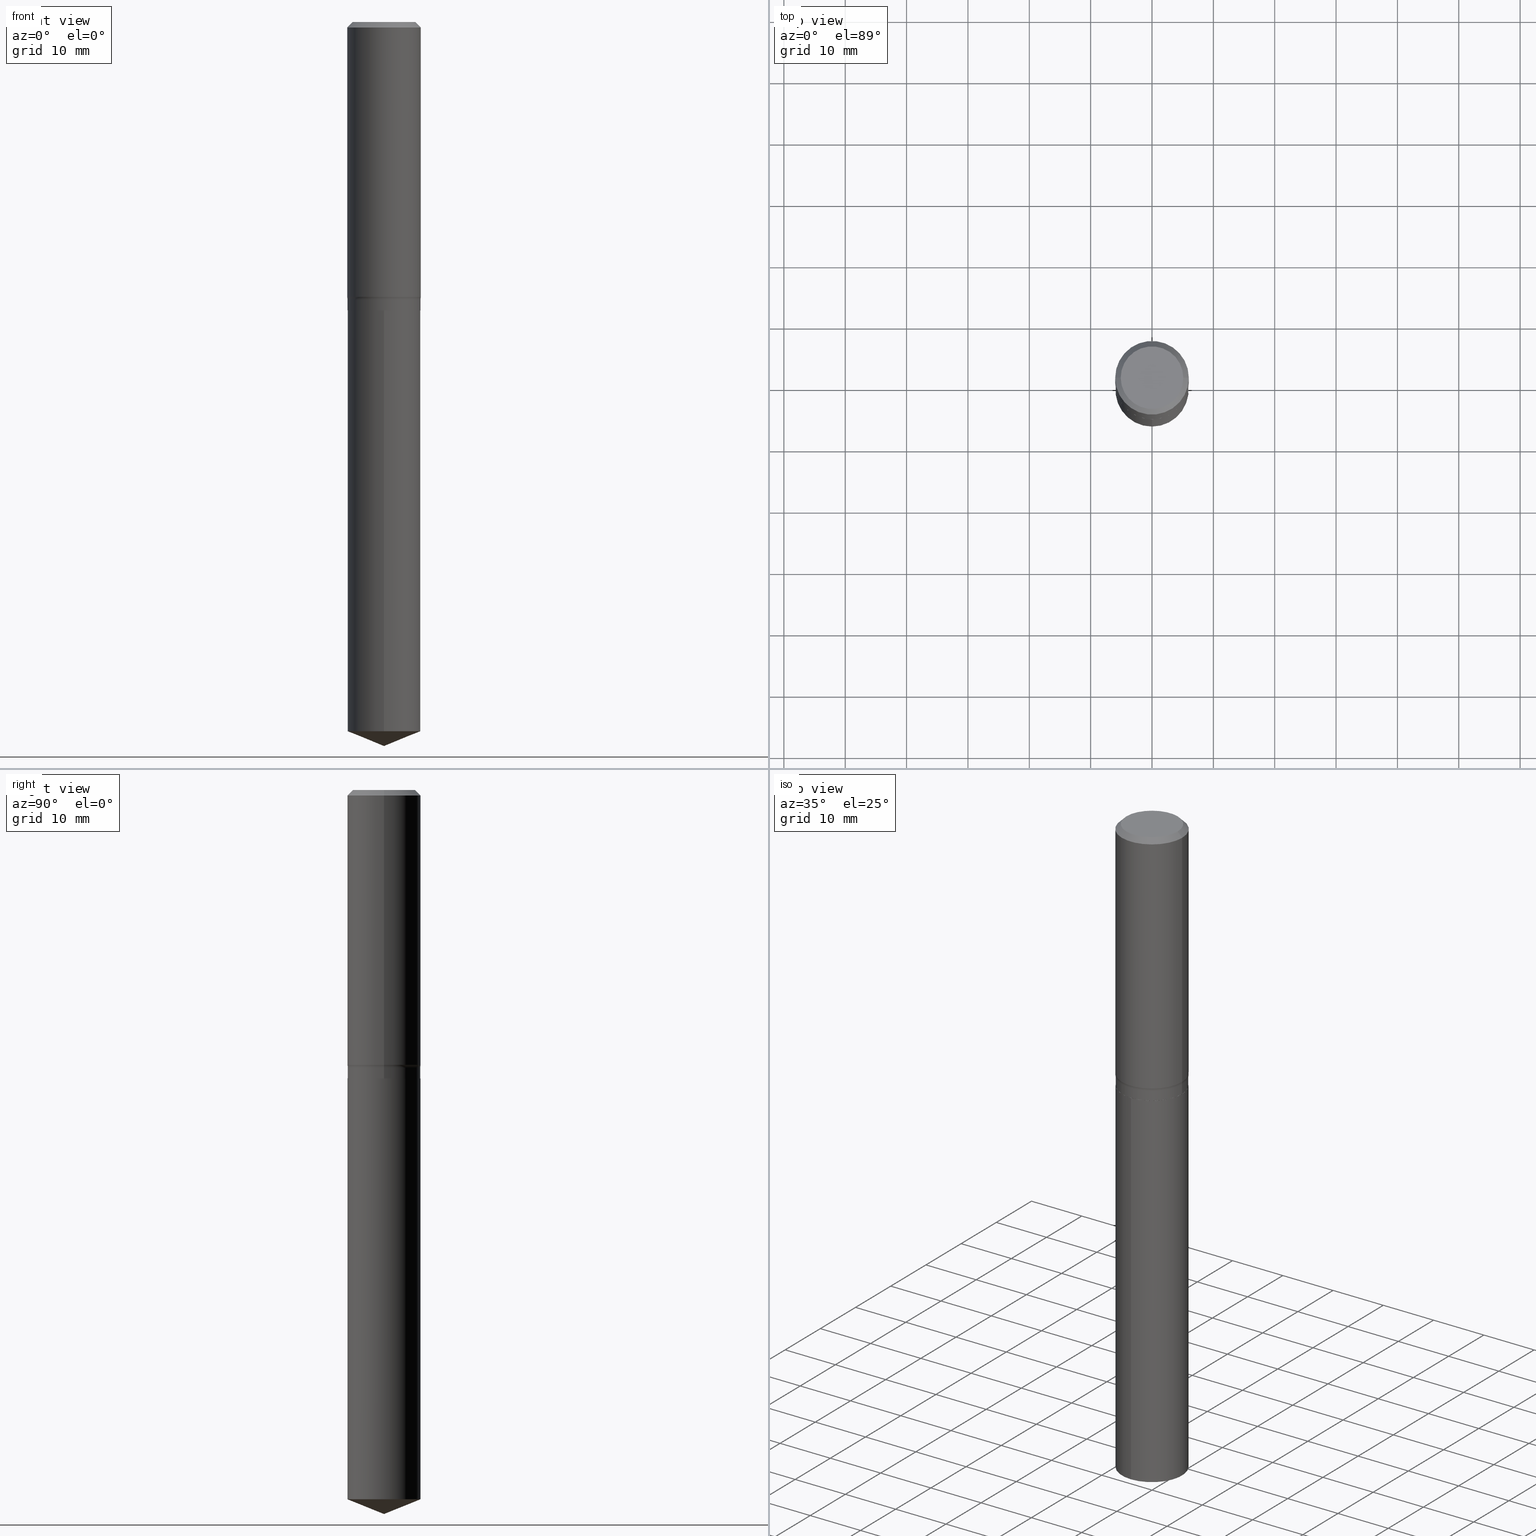
[diagram: canonical four-view strip — front | top / right | iso, engineering-drawing reading convention]
A machine part, canonical four-view strip (front | top / right | iso — engineering-drawing reading convention). The complete STEP part file that produces these views, byte-faithful:
ISO-10303-21;
HEADER;
FILE_DESCRIPTION (( 'STEP AP203' ),
    '1' );
FILE_NAME ('56862.STEP',
    '2024-04-19T14:33:19',
    ( '' ),
    ( '' ),
    'SwSTEP 2.0',
    'SolidWorks 2023',
    '' );
FILE_SCHEMA (( 'CONFIG_CONTROL_DESIGN' ));
ENDSEC;

DATA;
#1 = APPROVAL_DATE_TIME ( #459, #18 ) ;
#2 = FACE_OUTER_BOUND ( 'NONE', #207, .T. ) ;
#3 = DIMENSIONAL_EXPONENTS ( 1.000000000000000000, 0.000000000000000000, 0.000000000000000000, 0.000000000000000000, 0.000000000000000000, 0.000000000000000000, 0.000000000000000000 ) ;
#4 = DIRECTION ( 'NONE',  ( -2.438088387897960049E-29, 3.491481338843145188E-15, 1.000000000000000000 ) ) ;
#5 = FACE_OUTER_BOUND ( 'NONE', #16, .T. ) ;
#6 = PRODUCT_DEFINITION_FORMATION_WITH_SPECIFIED_SOURCE ( 'ANY', '', #263, .NOT_KNOWN. ) ;
#7 = DIRECTION ( 'NONE',  ( -2.445468806185136597E-29, 3.491481338843145583E-15, 1.000000000000000000 ) ) ;
#8 = ORIENTED_EDGE ( 'NONE', *, *, #10, .F. ) ;
#9 = LINE ( 'NONE', #203, #308 ) ;
#10 = EDGE_CURVE ( 'NONE', #198, #363, #327, .T. ) ;
#11 = ORIENTED_EDGE ( 'NONE', *, *, #35, .F. ) ;
#12 = DIRECTION ( 'NONE',  ( -2.445500418840969907E-29, 3.491436067720712344E-15, 1.000000000000000000 ) ) ;
#13 = ORIENTED_EDGE ( 'NONE', *, *, #467, .T. ) ;
#14 = DIRECTION ( 'NONE',  ( -2.445468806185136597E-29, 3.491481338843145583E-15, 1.000000000000000000 ) ) ;
#15 = VECTOR ( 'NONE', #393, 39.37007874015748143 ) ;
#16 = EDGE_LOOP ( 'NONE', ( #392, #406, #11, #434 ) ) ;
#17 = ORIENTED_EDGE ( 'NONE', *, *, #175, .T. ) ;
#18 = APPROVAL ( #184, 'UNSPECIFIED' ) ;
#19 = ORIENTED_EDGE ( 'NONE', *, *, #215, .F. ) ;
#20 = ORIENTED_EDGE ( 'NONE', *, *, #48, .T. ) ;
#21 = AXIS2_PLACEMENT_3D ( 'NONE', #265, #216, #174 ) ;
#22 = AXIS2_PLACEMENT_3D ( 'NONE', #476, #206, #468 ) ;
#23 = CARTESIAN_POINT ( 'NONE',  ( -0.2362000000000002153, -4.479762893647714438E-15, -1.763739867947701212 ) ) ;
#24 = ORIENTED_EDGE ( 'NONE', *, *, #453, .T. ) ;
#25 = CC_DESIGN_PERSON_AND_ORGANIZATION_ASSIGNMENT ( #181, #186, ( #69 ) ) ;
#26 = LINE ( 'NONE', #64, #359 ) ;
#27 = EDGE_CURVE ( 'NONE', #285, #177, #134, .T. ) ;
#28 = DIRECTION ( 'NONE',  ( -6.982962677686266711E-15, -1.000000000000000000, 3.491481338843145583E-15 ) ) ;
#29 = AXIS2_PLACEMENT_3D ( 'NONE', #344, #233, #234 ) ;
#30 = AXIS2_PLACEMENT_3D ( 'NONE', #169, #138, #440 ) ;
#31 = ADVANCED_FACE ( 'NONE', ( #411 ), #70, .F. ) ;
#32 = PERSON_AND_ORGANIZATION ( #410, #261 ) ;
#33 = CARTESIAN_POINT ( 'NONE',  ( 4.313170829291195543E-29, -6.158064835513072410E-15, -1.763739867947701212 ) ) ;
#34 = DATE_TIME_ROLE ( 'creation_date' ) ;
#35 = EDGE_CURVE ( 'NONE', #356, #363, #282, .T. ) ;
#36 = CARTESIAN_POINT ( 'NONE',  ( 1.665512172621786440E-15, 0.2343999999999841766, -4.551296252664241315 ) ) ;
#37 = EDGE_LOOP ( 'NONE', ( #333, #133, #358, #437 ) ) ;
#38 = CALENDAR_DATE ( 2024, 19, 4 ) ;
#39 = CARTESIAN_POINT ( 'NONE',  ( 0.2343999999999999972, -8.096745224777249096E-15, -1.850200000000000067 ) ) ;
#40 = AXIS2_PLACEMENT_3D ( 'NONE', #191, #416, #452 ) ;
#41 = AXIS2_PLACEMENT_3D ( 'NONE', #284, #357, #435 ) ;
#42 = PERSON_AND_ORGANIZATION_ROLE ( 'creator' ) ;
#43 = LINE ( 'NONE', #378, #328 ) ;
#44 = CARTESIAN_POINT ( 'NONE',  ( 0.000000000000000000, 0.000000000000000000, 0.000000000000000000 ) ) ;
#45 = CARTESIAN_POINT ( 'NONE',  ( 0.000000000000000000, 0.000000000000000000, 0.000000000000000000 ) ) ;
#46 = ORIENTED_EDGE ( 'NONE', *, *, #158, .T. ) ;
#47 = CIRCLE ( 'NONE', #192, 0.2343999999999999972 ) ;
#48 = EDGE_CURVE ( 'NONE', #223, #316, #26, .T. ) ;
#49 = AXIS2_PLACEMENT_3D ( 'NONE', #54, #165, #349 ) ;
#50 = FACE_OUTER_BOUND ( 'NONE', #318, .T. ) ;
#51 = ORIENTED_EDGE ( 'NONE', *, *, #220, .F. ) ;
#52 = LINE ( 'NONE', #355, #104 ) ;
#53 = ORIENTED_EDGE ( 'NONE', *, *, #266, .F. ) ;
#54 = CARTESIAN_POINT ( 'NONE',  ( 4.353912662532017137E-29, -6.216233375676336032E-15, -1.780399999999999983 ) ) ;
#55 = ORIENTED_EDGE ( 'NONE', *, *, #106, .T. ) ;
#56 = CC_DESIGN_PERSON_AND_ORGANIZATION_ASSIGNMENT ( #442, #218, ( #417 ) ) ;
#57 = CARTESIAN_POINT ( 'NONE',  ( 0.2361999999999999933, -1.773078968304709514E-15, -0.03543000000000021826 ) ) ;
#58 = VECTOR ( 'NONE', #273, 39.37007874015748143 ) ;
#59 = AXIS2_PLACEMENT_3D ( 'NONE', #45, #7, #242 ) ;
#60 = ORIENTED_EDGE ( 'NONE', *, *, #436, .F. ) ;
#61 = DIRECTION ( 'NONE',  ( -2.445500418840969907E-29, 3.491436067720711950E-15, 1.000000000000000000 ) ) ;
#62 = EDGE_LOOP ( 'NONE', ( #325, #398, #262, #213 ) ) ;
#63 = DIRECTION ( 'NONE',  ( 1.000000000000000000, -6.982962677686265922E-15, 0.000000000000000000 ) ) ;
#64 = CARTESIAN_POINT ( 'NONE',  ( 0.2362000000000001043, -1.649375784469496920E-15, 1.151752954443000508E-29 ) ) ;
#65 = ADVANCED_BREP_SHAPE_REPRESENTATION ( '56862', ( #426, #275, #156 ), #415 ) ;
#66 = EDGE_CURVE ( 'NONE', #351, #166, #68, .T. ) ;
#67 = DIRECTION ( 'NONE',  ( 1.000000000000000000, -6.982962677686265922E-15, 0.000000000000000000 ) ) ;
#68 = CIRCLE ( 'NONE', #199, 0.2338999999999999968 ) ;
#69 = SECURITY_CLASSIFICATION ( '', '', #450 ) ;
#70 = PLANE ( 'NONE',  #259 ) ;
#71 = CARTESIAN_POINT ( 'NONE',  ( 4.525829119606832626E-29, -6.461684513797009689E-15, -1.850700000000000012 ) ) ;
#72 = FACE_OUTER_BOUND ( 'NONE', #89, .T. ) ;
#73 = ADVANCED_FACE ( 'NONE', ( #72 ), #136, .T. ) ;
#74 = APPROVAL_STATUS ( 'not_yet_approved' ) ;
#75 = CARTESIAN_POINT ( 'NONE',  ( -1.636806451649615354E-15, -0.2344000000000064643, -1.850699999999999124 ) ) ;
#76 = AXIS2_PLACEMENT_3D ( 'NONE', #109, #80, #78 ) ;
#77 = COORDINATED_UNIVERSAL_TIME_OFFSET ( 5, 0, .BEHIND. ) ;
#78 = DIRECTION ( 'NONE',  ( 1.000000000000000000, -6.982962677686269866E-15, 4.883557194083114022E-29 ) ) ;
#79 = LINE ( 'NONE', #456, #454 ) ;
#80 = DIRECTION ( 'NONE',  ( -2.445468806185136597E-29, 3.491481338843145583E-15, 1.000000000000000000 ) ) ;
#81 = CC_DESIGN_APPROVAL ( #18, ( #69 ) ) ;
#82 = CARTESIAN_POINT ( 'NONE',  ( -1.001697619218023151E-46, 1.430158722866391908E-32, 4.096137381448114529E-18 ) ) ;
#83 = CARTESIAN_POINT ( 'NONE',  ( -0.2338999999999999968, -4.799725054854136166E-15, -1.850700000000000234 ) ) ;
#84 = EDGE_LOOP ( 'NONE', ( #466, #159, #469, #221 ) ) ;
#85 = FACE_OUTER_BOUND ( 'NONE', #427, .T. ) ;
#86 = ORIENTED_EDGE ( 'NONE', *, *, #376, .T. ) ;
#87 = CIRCLE ( 'NONE', #119, 0.2343999999999999972 ) ;
#88 = PLANE ( 'NONE',  #208 ) ;
#89 = EDGE_LOOP ( 'NONE', ( #60, #13, #287, #248 ) ) ;
#90 = CARTESIAN_POINT ( 'NONE',  ( 0.000000000000000000, 0.000000000000000000, 0.000000000000000000 ) ) ;
#91 = ORIENTED_EDGE ( 'NONE', *, *, #158, .F. ) ;
#92 = CARTESIAN_POINT ( 'NONE',  ( -0.2343999999999999972, -4.672573901780288082E-15, -1.780399999999999983 ) ) ;
#93 = CC_DESIGN_PERSON_AND_ORGANIZATION_ASSIGNMENT ( #32, #42, ( #6 ) ) ;
#94 = ORIENTED_EDGE ( 'NONE', *, *, #470, .T. ) ;
#95 = VECTOR ( 'NONE', #12, 39.37007874015748143 ) ;
#96 = ORIENTED_EDGE ( 'NONE', *, *, #102, .T. ) ;
#97 = EDGE_CURVE ( 'NONE', #481, #142, #484, .T. ) ;
#98 = ORIENTED_EDGE ( 'NONE', *, *, #35, .T. ) ;
#99 = EDGE_CURVE ( 'NONE', #223, #356, #268, .T. ) ;
#100 = DIRECTION ( 'NONE',  ( -6.982962677686265133E-15, -1.000000000000000000, 3.498761904101795214E-15 ) ) ;
#101 = CARTESIAN_POINT ( 'NONE',  ( 4.353912662532017137E-29, -6.216233375676336032E-15, -1.780399999999999983 ) ) ;
#102 = EDGE_CURVE ( 'NONE', #103, #202, #47, .T. ) ;
#103 = VERTEX_POINT ( 'NONE', #288 ) ;
#104 = VECTOR ( 'NONE', #362, 39.37007874015748143 ) ;
#105 = CARTESIAN_POINT ( 'NONE',  ( 0.000000000000000000, 0.000000000000000000, 0.000000000000000000 ) ) ;
#106 = EDGE_CURVE ( 'NONE', #142, #316, #126, .T. ) ;
#107 = VERTEX_POINT ( 'NONE', #151 ) ;
#108 = COORDINATED_UNIVERSAL_TIME_OFFSET ( 5, 0, .BEHIND. ) ;
#109 = CARTESIAN_POINT ( 'NONE',  ( 4.353912662532017137E-29, -6.216233375676336032E-15, -1.780399999999999983 ) ) ;
#110 = AXIS2_PLACEMENT_3D ( 'NONE', #82, #341, #227 ) ;
#111 = CC_DESIGN_APPROVAL ( #112, ( #417 ) ) ;
#112 = APPROVAL ( #480, 'UNSPECIFIED' ) ;
#113 = DIRECTION ( 'NONE',  ( 6.588037525764800757E-15, 0.9271838545667901998, 0.3746065934159050204 ) ) ;
#114 = CARTESIAN_POINT ( 'NONE',  ( -0.2361999999999999933, -1.462582067808785220E-15, -0.03543000000000021826 ) ) ;
#115 = DATE_AND_TIME ( #38, #235 ) ;
#116 = EDGE_CURVE ( 'NONE', #107, #285, #43, .T. ) ;
#117 = CARTESIAN_POINT ( 'NONE',  ( 0.2007700000000000040, -1.560767496960719672E-15, 4.096137381458473721E-18 ) ) ;
#118 = CONICAL_SURFACE ( 'NONE', #183, 0.2361999999999999933, 0.7853981633974452814 ) ;
#119 = AXIS2_PLACEMENT_3D ( 'NONE', #465, #430, #352 ) ;
#120 = CARTESIAN_POINT ( 'NONE',  ( 0.2343999999999999972, -1.636806451649660911E-15, 1.142975836246567295E-29 ) ) ;
#121 = CARTESIAN_POINT ( 'NONE',  ( 0.2343999999999999972, -7.853039827325996154E-15, -1.780399999999999983 ) ) ;
#122 = ORIENTED_EDGE ( 'NONE', *, *, #106, .F. ) ;
#123 = LINE ( 'NONE', #83, #270 ) ;
#124 = ORIENTED_EDGE ( 'NONE', *, *, #301, .T. ) ;
#125 = CC_DESIGN_PERSON_AND_ORGANIZATION_ASSIGNMENT ( #254, #179, ( #263 ) ) ;
#126 = CIRCLE ( 'NONE', #314, 0.2361999999999999933 ) ;
#127 = APPROVAL_PERSON_ORGANIZATION ( #421, #224, #306 ) ;
#128 = DIRECTION ( 'NONE',  ( -1.000000000000000000, 6.982962677686265922E-15, -4.876176775795935793E-29 ) ) ;
#129 = VERTEX_POINT ( 'NONE', #39 ) ;
#130 = DIRECTION ( 'NONE',  ( 1.000000000000000000, -6.982962677686265922E-15, 0.000000000000000000 ) ) ;
#131 = ORIENTED_EDGE ( 'NONE', *, *, #312, .T. ) ;
#132 = LENGTH_MEASURE_WITH_UNIT ( LENGTH_MEASURE( 0.02539999999999999897 ), #222 );
#133 = ORIENTED_EDGE ( 'NONE', *, *, #334, .T. ) ;
#134 = CIRCLE ( 'NONE', #337, 0.2343999999999999972 ) ;
#135 = COORDINATED_UNIVERSAL_TIME_OFFSET ( 5, 0, .BEHIND. ) ;
#136 = CYLINDRICAL_SURFACE ( 'NONE', #21, 0.2343999999999999972 ) ;
#137 = CARTESIAN_POINT ( 'NONE',  ( 0.3124000000000000110, -8.397710916185525778E-15, -1.780399999999999983 ) ) ;
#138 = DIRECTION ( 'NONE',  ( -2.445468806185136597E-29, 3.491481338843145583E-15, 1.000000000000000000 ) ) ;
#139 = DIRECTION ( 'NONE',  ( -2.445468806185136877E-29, 3.491481338843145188E-15, 1.000000000000000000 ) ) ;
#140 = EDGE_CURVE ( 'NONE', #431, #142, #304, .T. ) ;
#141 = APPLICATION_PROTOCOL_DEFINITION ( 'international standard', 'config_control_design', 1994, #354 ) ;
#142 = VERTEX_POINT ( 'NONE', #114 ) ;
#143 = VECTOR ( 'NONE', #371, 39.37007874015748143 ) ;
#144 = CC_DESIGN_SECURITY_CLASSIFICATION ( #69, ( #6 ) ) ;
#145 = CARTESIAN_POINT ( 'NONE',  ( 0.2338999999999999968, -8.094999484107828382E-15, -1.850700000000000234 ) ) ;
#146 = DIRECTION ( 'NONE',  ( 1.000000000000000000, -6.982962677686266711E-15, 0.000000000000000000 ) ) ;
#147 = PERSON_AND_ORGANIZATION ( #410, #261 ) ;
#148 = DIRECTION ( 'NONE',  ( -0.7071067811865453523, 2.468850131082234184E-15, -0.7071067811865496822 ) ) ;
#149 = CONICAL_SURFACE ( 'NONE', #164, 0.2338999999999999968, 0.7853981633972775267 ) ;
#150 = AXIS2_PLACEMENT_3D ( 'NONE', #264, #401, #63 ) ;
#151 = CARTESIAN_POINT ( 'NONE',  ( 1.136179494593514564E-28, -1.622121197063042648E-14, -4.645999999999999908 ) ) ;
#152 = ADVANCED_FACE ( 'NONE', ( #230 ), #348, .F. ) ;
#153 = APPROVAL_DATE_TIME ( #225, #224 ) ;
#154 = DIRECTION ( 'NONE',  ( 2.445468806185136597E-29, -3.491481338843145583E-15, -1.000000000000000000 ) ) ;
#155 = DIRECTION ( 'NONE',  ( -2.445468806185136597E-29, 3.491481338843145583E-15, 1.000000000000000000 ) ) ;
#156 = AXIS2_PLACEMENT_3D ( 'NONE', #105, #438, #448 ) ;
#157 = CARTESIAN_POINT ( 'NONE',  ( -0.2007700000000000040, 1.463821008716677338E-15, 4.096137381438094301E-18 ) ) ;
#158 = EDGE_CURVE ( 'NONE', #481, #223, #399, .T. ) ;
#159 = ORIENTED_EDGE ( 'NONE', *, *, #97, .T. ) ;
#160 = LINE ( 'NONE', #201, #95 ) ;
#161 = ORIENTED_EDGE ( 'NONE', *, *, #334, .F. ) ;
#162 = DIRECTION ( 'NONE',  ( 1.000000000000000000, -6.982962677686266711E-15, 4.876176775795935793E-29 ) ) ;
#163 = ORIENTED_EDGE ( 'NONE', *, *, #116, .T. ) ;
#164 = AXIS2_PLACEMENT_3D ( 'NONE', #302, #451, #490 ) ;
#165 = DIRECTION ( 'NONE',  ( -2.445468806185136597E-29, 3.491481338843145583E-15, 1.000000000000000000 ) ) ;
#166 = VERTEX_POINT ( 'NONE', #145 ) ;
#167 = DIRECTION ( 'NONE',  ( -2.445500418840969907E-29, 3.491436067720711950E-15, 1.000000000000000000 ) ) ;
#168 = ORIENTED_EDGE ( 'NONE', *, *, #436, .T. ) ;
#169 = CARTESIAN_POINT ( 'NONE',  ( 0.000000000000000000, 0.000000000000000000, 0.000000000000000000 ) ) ;
#170 = CARTESIAN_POINT ( 'NONE',  ( 1.113013838661758567E-28, -1.589064367470033454E-14, -4.551296252664240427 ) ) ;
#171 = CIRCLE ( 'NONE', #446, 0.2362000000000002153 ) ;
#172 = APPLICATION_PROTOCOL_DEFINITION ( 'international standard', 'config_control_design', 1994, #231 ) ;
#173 = AXIS2_PLACEMENT_3D ( 'NONE', #332, #412, #478 ) ;
#174 = DIRECTION ( 'NONE',  ( -6.982962677686265922E-15, -1.000000000000000000, 3.496392483358698711E-15 ) ) ;
#175 = EDGE_CURVE ( 'NONE', #431, #253, #400, .T. ) ;
#176 = CARTESIAN_POINT ( 'NONE',  ( 1.113013838661758567E-28, -1.589064367470033454E-14, -4.551296252664240427 ) ) ;
#177 = VERTEX_POINT ( 'NONE', #36 ) ;
#178 = ADVANCED_FACE ( 'NONE', ( #374 ), #321, .F. ) ;
#179 = PERSON_AND_ORGANIZATION_ROLE ( 'design_owner' ) ;
#180 = ORIENTED_EDGE ( 'NONE', *, *, #211, .F. ) ;
#181 = PERSON_AND_ORGANIZATION ( #410, #261 ) ;
#182 = CARTESIAN_POINT ( 'NONE',  ( 4.525829119606832626E-29, -6.461684513797009689E-15, -1.850700000000000012 ) ) ;
#183 = AXIS2_PLACEMENT_3D ( 'NONE', #310, #383, #194 ) ;
#184 = APPROVAL_STATUS ( 'not_yet_approved' ) ;
#185 = DIRECTION ( 'NONE',  ( -6.474490251793187306E-15, -0.9271838545667875353, 0.3746065934159114597 ) ) ;
#186 = PERSON_AND_ORGANIZATION_ROLE ( 'classification_officer' ) ;
#187 = EDGE_CURVE ( 'NONE', #316, #142, #390, .T. ) ;
#188 = DIRECTION ( 'NONE',  ( -2.445468806185136597E-29, 3.491481338843145583E-15, 1.000000000000000000 ) ) ;
#189 = PRODUCT_DEFINITION_SHAPE ( 'NONE', 'NONE',  #417 ) ;
#190 = PERSON_AND_ORGANIZATION_ROLE ( 'design_supplier' ) ;
#191 = CARTESIAN_POINT ( 'NONE',  ( 4.313170829291195543E-29, -6.158064835513072410E-15, -1.763739867947701212 ) ) ;
#192 = AXIS2_PLACEMENT_3D ( 'NONE', #182, #339, #488 ) ;
#193 = LOCAL_TIME ( 10, 33, 19.00000000000000000, #77 ) ;
#194 = DIRECTION ( 'NONE',  ( -1.000000000000000000, 6.982962677686266711E-15, 0.000000000000000000 ) ) ;
#195 = ADVANCED_FACE ( 'NONE', ( #491 ), #149, .T. ) ;
#196 = DIRECTION ( 'NONE',  ( 1.000000000000000000, -6.982962677686266711E-15, 0.000000000000000000 ) ) ;
#197 = CARTESIAN_POINT ( 'NONE',  ( 4.525829119606832626E-29, -6.461684513797009689E-15, -1.850700000000000012 ) ) ;
#198 = VERTEX_POINT ( 'NONE', #267 ) ;
#199 = AXIS2_PLACEMENT_3D ( 'NONE', #300, #449, #404 ) ;
#200 = AXIS2_PLACEMENT_3D ( 'NONE', #90, #286, #162 ) ;
#201 = CARTESIAN_POINT ( 'NONE',  ( -1.636806451649615354E-15, -0.2344000000000064643, -1.850699999999999124 ) ) ;
#202 = VERTEX_POINT ( 'NONE', #75 ) ;
#203 = CARTESIAN_POINT ( 'NONE',  ( 0.2361999999999999933, -1.744152810908849053E-15, -0.03543000000000021826 ) ) ;
#204 = CC_DESIGN_PERSON_AND_ORGANIZATION_ASSIGNMENT ( #303, #190, ( #6 ) ) ;
#205 = EDGE_LOOP ( 'NONE', ( #361, #46, #20, #122 ) ) ;
#206 = DIRECTION ( 'NONE',  ( -2.445500418840969907E-29, 3.491436067720711950E-15, 1.000000000000000000 ) ) ;
#207 = EDGE_LOOP ( 'NONE', ( #161, #479, #295, #55 ) ) ;
#208 = AXIS2_PLACEMENT_3D ( 'NONE', #247, #471, #128 ) ;
#209 = DIRECTION ( 'NONE',  ( -2.445500418840969907E-29, 3.491436067720711950E-15, 1.000000000000000000 ) ) ;
#210 = EDGE_LOOP ( 'NONE', ( #477, #180, #429, #98 ) ) ;
#211 = EDGE_CURVE ( 'NONE', #223, #481, #171, .T. ) ;
#212 = CARTESIAN_POINT ( 'NONE',  ( -8.491780760846409121E-28, 1.212368171484935185E-13, 34.72407874015748064 ) ) ;
#213 = ORIENTED_EDGE ( 'NONE', *, *, #376, .F. ) ;
#214 =( NAMED_UNIT ( * ) PLANE_ANGLE_UNIT ( ) SI_UNIT ( $, .RADIAN. ) );
#215 = EDGE_CURVE ( 'NONE', #166, #129, #307, .T. ) ;
#216 = DIRECTION ( 'NONE',  ( -2.445500418840969907E-29, 3.491436067720711950E-15, 1.000000000000000000 ) ) ;
#217 = CLOSED_SHELL ( 'NONE', ( #195, #245, #256, #178, #419, #279, #305, #475, #232, #384, #152, #298 ) ) ;
#218 = PERSON_AND_ORGANIZATION_ROLE ( 'creator' ) ;
#219 = CONICAL_SURFACE ( 'NONE', #408, 97.44436430772933022, 1.186823891356148186 ) ;
#220 = EDGE_CURVE ( 'NONE', #107, #177, #79, .T. ) ;
#221 = ORIENTED_EDGE ( 'NONE', *, *, #48, .F. ) ;
#222 =( LENGTH_UNIT ( ) NAMED_UNIT ( * ) SI_UNIT ( $, .METRE. ) );
#223 = VERTEX_POINT ( 'NONE', #418 ) ;
#224 = APPROVAL ( #74, 'UNSPECIFIED' ) ;
#225 = DATE_AND_TIME ( #489, #391 ) ;
#226 = CARTESIAN_POINT ( 'NONE',  ( -0.2362000000000001043, 1.678301941865357380E-15, -1.161852468318209317E-29 ) ) ;
#227 = DIRECTION ( 'NONE',  ( 1.000000000000000000, -6.982962677686266711E-15, 4.876140833081945105E-29 ) ) ;
#228 = AXIS2_PLACEMENT_3D ( 'NONE', #71, #61, #405 ) ;
#229 = EDGE_CURVE ( 'NONE', #253, #431, #407, .T. ) ;
#230 = FACE_OUTER_BOUND ( 'NONE', #246, .T. ) ;
#231 = APPLICATION_CONTEXT ( 'configuration controlled 3d designs of mechanical parts and assemblies' ) ;
#232 = ADVANCED_FACE ( 'NONE', ( #2 ), #118, .T. ) ;
#233 = DIRECTION ( 'NONE',  ( -2.445468806185136597E-29, 3.491481338843145583E-15, 1.000000000000000000 ) ) ;
#234 = DIRECTION ( 'NONE',  ( 1.000000000000000000, -6.982962677686266711E-15, 4.876140833081945105E-29 ) ) ;
#235 = LOCAL_TIME ( 10, 33, 19.00000000000000000, #108 ) ;
#236 = CARTESIAN_POINT ( 'NONE',  ( 8.664295980313991736E-31, -1.237031838352134079E-16, -0.03543000000000021826 ) ) ;
#237 = LINE ( 'NONE', #120, #15 ) ;
#238 = EDGE_LOOP ( 'NONE', ( #51, #163, #396 ) ) ;
#239 = CARTESIAN_POINT ( 'NONE',  ( -1.636806451649549484E-15, -0.2344000000000159567, -4.551296252664239539 ) ) ;
#240 = EDGE_LOOP ( 'NONE', ( #281, #124, #402, #19 ) ) ;
#241 = VECTOR ( 'NONE', #139, 39.37007874015748143 ) ;
#242 = DIRECTION ( 'NONE',  ( 1.000000000000000000, -6.982962677686266711E-15, 4.876176775795935793E-29 ) ) ;
#243 = EDGE_LOOP ( 'NONE', ( #474, #439, #394 ) ) ;
#244 = FACE_OUTER_BOUND ( 'NONE', #486, .T. ) ;
#245 = ADVANCED_FACE ( 'NONE', ( #347 ), #462, .T. ) ;
#246 = EDGE_LOOP ( 'NONE', ( #445, #323 ) ) ;
#247 = CARTESIAN_POINT ( 'NONE',  ( -5.008488096090115757E-47, 7.150793614331959538E-33, 2.048068690724057264E-18 ) ) ;
#248 = ORIENTED_EDGE ( 'NONE', *, *, #102, .F. ) ;
#249 = AXIS2_PLACEMENT_3D ( 'NONE', #458, #154, #461 ) ;
#250 = AXIS2_PLACEMENT_3D ( 'NONE', #176, #167, #485 ) ;
#251 = CIRCLE ( 'NONE', #41, 0.2338999999999999968 ) ;
#252 = APPROVAL_ROLE ( '' ) ;
#253 = VERTEX_POINT ( 'NONE', #117 ) ;
#254 = PERSON_AND_ORGANIZATION ( #410, #261 ) ;
#255 = ORIENTED_EDGE ( 'NONE', *, *, #229, .T. ) ;
#256 = ADVANCED_FACE ( 'NONE', ( #274 ), #385, .T. ) ;
#257 = FACE_OUTER_BOUND ( 'NONE', #205, .T. ) ;
#258 = DIRECTION ( 'NONE',  ( 1.000000000000000000, -6.982962677686255667E-15, 0.000000000000000000 ) ) ;
#259 = AXIS2_PLACEMENT_3D ( 'NONE', #365, #370, #413 ) ;
#260 = COORDINATED_UNIVERSAL_TIME_OFFSET ( 5, 0, .BEHIND. ) ;
#261 = ORGANIZATION ( 'UNSPECIFIED', 'UNSPECIFIED', '' ) ;
#262 = ORIENTED_EDGE ( 'NONE', *, *, #215, .T. ) ;
#263 = PRODUCT ( '56862', '56862', '', ( #324 ) ) ;
#264 = CARTESIAN_POINT ( 'NONE',  ( 4.353912662532017137E-29, -6.216233375676336032E-15, -1.780399999999999983 ) ) ;
#265 = CARTESIAN_POINT ( 'NONE',  ( 4.525829119606832626E-29, -6.461684513797009689E-15, -1.850700000000000012 ) ) ;
#266 = EDGE_CURVE ( 'NONE', #285, #202, #160, .T. ) ;
#267 = CARTESIAN_POINT ( 'NONE',  ( -0.2343999999999999972, -4.672573901780288082E-15, -1.850200000000000067 ) ) ;
#268 = CIRCLE ( 'NONE', #422, 0.07800000000000002764 ) ;
#269 = CARTESIAN_POINT ( 'NONE',  ( 8.664295980313991736E-31, -1.237031838352134079E-16, -0.03543000000000021826 ) ) ;
#270 = VECTOR ( 'NONE', #395, 39.37007874015748143 ) ;
#271 = CARTESIAN_POINT ( 'NONE',  ( 0.2338999999999999968, -8.094999484107828382E-15, -1.850700000000000234 ) ) ;
#272 = ADVANCED_FACE ( 'NONE', ( #276 ), #290, .T. ) ;
#273 = DIRECTION ( 'NONE',  ( 0.7071067811864267805, -2.468850131080992517E-15, 0.7071067811866682540 ) ) ;
#274 = FACE_OUTER_BOUND ( 'NONE', #84, .T. ) ;
#275 = MANIFOLD_SOLID_BREP ( 'Body-Move/Copy2[2]', #217 ) ;
#276 = FACE_OUTER_BOUND ( 'NONE', #243, .T. ) ;
#277 = CYLINDRICAL_SURFACE ( 'NONE', #200, 0.2343999999999999972 ) ;
#278 = ORIENTED_EDGE ( 'NONE', *, *, #492, .F. ) ;
#279 = ADVANCED_FACE ( 'NONE', ( #85 ), #277, .T. ) ;
#280 = DIRECTION ( 'NONE',  ( -2.445468806185136597E-29, 3.491481338843145583E-15, 1.000000000000000000 ) ) ;
#281 = ORIENTED_EDGE ( 'NONE', *, *, #293, .T. ) ;
#282 = CIRCLE ( 'NONE', #297, 0.2343999999999999972 ) ;
#283 = APPROVAL_PERSON_ORGANIZATION ( #326, #112, #252 ) ;
#284 = CARTESIAN_POINT ( 'NONE',  ( 4.525829119606833187E-29, -6.461684513797010478E-15, -1.850700000000000234 ) ) ;
#285 = VERTEX_POINT ( 'NONE', #239 ) ;
#286 = DIRECTION ( 'NONE',  ( -2.445468806185136597E-29, 3.491481338843145583E-15, 1.000000000000000000 ) ) ;
#287 = ORIENTED_EDGE ( 'NONE', *, *, #266, .T. ) ;
#288 = CARTESIAN_POINT ( 'NONE',  ( 1.665512172621786637E-15, 0.2343999999999935857, -1.850700000000000900 ) ) ;
#289 = VECTOR ( 'NONE', #148, 39.37007874015748143 ) ;
#290 = CONICAL_SURFACE ( 'NONE', #22, 97.44436430772933022, 1.186823891356148186 ) ;
#291 = DATE_AND_TIME ( #330, #299 ) ;
#292 = EDGE_LOOP ( 'NONE', ( #296, #96 ) ) ;
#293 = EDGE_CURVE ( 'NONE', #166, #351, #251, .T. ) ;
#294 = APPROVAL_DATE_TIME ( #291, #112 ) ;
#295 = ORIENTED_EDGE ( 'NONE', *, *, #140, .T. ) ;
#296 = ORIENTED_EDGE ( 'NONE', *, *, #492, .T. ) ;
#297 = AXIS2_PLACEMENT_3D ( 'NONE', #101, #443, #67 ) ;
#298 = ADVANCED_FACE ( 'NONE', ( #313 ), #424, .T. ) ;
#299 = LOCAL_TIME ( 10, 33, 19.00000000000000000, #135 ) ;
#300 = CARTESIAN_POINT ( 'NONE',  ( 4.525829119606833187E-29, -6.461684513797010478E-15, -1.850700000000000234 ) ) ;
#301 = EDGE_CURVE ( 'NONE', #351, #198, #123, .T. ) ;
#302 = CARTESIAN_POINT ( 'NONE',  ( 4.525829119606833187E-29, -6.461684513797010478E-15, -1.850700000000000234 ) ) ;
#303 = PERSON_AND_ORGANIZATION ( #410, #261 ) ;
#304 = LINE ( 'NONE', #311, #289 ) ;
#305 = ADVANCED_FACE ( 'NONE', ( #315 ), #447, .F. ) ;
#306 = APPROVAL_ROLE ( '' ) ;
#307 = LINE ( 'NONE', #271, #58 ) ;
#308 = VECTOR ( 'NONE', #319, 39.37007874015748143 ) ;
#309 = DATE_TIME_ROLE ( 'classification_date' ) ;
#310 = CARTESIAN_POINT ( 'NONE',  ( 8.664295980313991736E-31, -1.237031838352134079E-16, -0.03543000000000021826 ) ) ;
#311 = CARTESIAN_POINT ( 'NONE',  ( -0.2361999999999999933, 1.525672600634282748E-15, -0.03543000000000021826 ) ) ;
#312 = EDGE_CURVE ( 'NONE', #129, #356, #237, .T. ) ;
#313 = FACE_OUTER_BOUND ( 'NONE', #62, .T. ) ;
#314 = AXIS2_PLACEMENT_3D ( 'NONE', #269, #380, #146 ) ;
#315 = FACE_OUTER_BOUND ( 'NONE', #210, .T. ) ;
#316 = VERTEX_POINT ( 'NONE', #57 ) ;
#317 = DIRECTION ( 'NONE',  ( 1.000000000000000000, -6.982962677686266711E-15, 4.876176775795935793E-29 ) ) ;
#318 = EDGE_LOOP ( 'NONE', ( #369, #168, #278, #53 ) ) ;
#319 = DIRECTION ( 'NONE',  ( 0.7071067811865453523, -7.319954787623248157E-15, -0.7071067811865496822 ) ) ;
#320 = EDGE_LOOP ( 'NONE', ( #91, #94, #24, #387 ) ) ;
#321 = TOROIDAL_SURFACE ( 'NONE', #76, 0.3124000000000000110, 0.07799999999999999989 ) ;
#322 = CARTESIAN_POINT ( 'NONE',  ( 4.524606385203739825E-29, -6.459938773127588186E-15, -1.850200000000000067 ) ) ;
#323 = ORIENTED_EDGE ( 'NONE', *, *, #66, .F. ) ;
#324 = MECHANICAL_CONTEXT ( 'NONE', #354, 'mechanical' ) ;
#325 = ORIENTED_EDGE ( 'NONE', *, *, #301, .F. ) ;
#326 = PERSON_AND_ORGANIZATION ( #410, #261 ) ;
#327 = LINE ( 'NONE', #487, #241 ) ;
#328 = VECTOR ( 'NONE', #185, 39.37007874015748854 ) ;
#329 = CIRCLE ( 'NONE', #173, 0.07800000000000002764 ) ;
#330 = CALENDAR_DATE ( 2024, 19, 4 ) ;
#331 = DIRECTION ( 'NONE',  ( -6.982962677686265922E-15, -1.000000000000000000, 2.330928322239132474E-15 ) ) ;
#332 = CARTESIAN_POINT ( 'NONE',  ( -0.3124000000000000110, -3.996497869161782973E-15, -1.780399999999999983 ) ) ;
#333 = ORIENTED_EDGE ( 'NONE', *, *, #229, .F. ) ;
#334 = EDGE_CURVE ( 'NONE', #253, #316, #9, .T. ) ;
#335 = DIRECTION ( 'NONE',  ( -2.445468806185136877E-29, 3.491481338843145188E-15, 1.000000000000000000 ) ) ;
#336 = EDGE_CURVE ( 'NONE', #129, #198, #338, .T. ) ;
#337 = AXIS2_PLACEMENT_3D ( 'NONE', #170, #441, #331 ) ;
#338 = CIRCLE ( 'NONE', #350, 0.2343999999999999972 ) ;
#339 = DIRECTION ( 'NONE',  ( -2.445500418840969907E-29, 3.491436067720711950E-15, 1.000000000000000000 ) ) ;
#340 = SHAPE_DEFINITION_REPRESENTATION ( #189, #65 ) ;
#341 = DIRECTION ( 'NONE',  ( -2.445468806185136597E-29, 3.491481338843145583E-15, 1.000000000000000000 ) ) ;
#342 = DIRECTION ( 'NONE',  ( 1.000000000000000000, -6.982962677686266711E-15, 0.000000000000000000 ) ) ;
#343 = COORDINATED_UNIVERSAL_TIME_OFFSET ( 5, 0, .BEHIND. ) ;
#344 = CARTESIAN_POINT ( 'NONE',  ( -1.001697619218023151E-46, 1.430158722866391908E-32, 4.096137381448114529E-18 ) ) ;
#345 = APPROVAL_PERSON_ORGANIZATION ( #147, #18, #381 ) ;
#346 = CC_DESIGN_DATE_AND_TIME_ASSIGNMENT ( #115, #309, ( #69 ) ) ;
#347 = FACE_OUTER_BOUND ( 'NONE', #37, .T. ) ;
#348 = PLANE ( 'NONE',  #472 ) ;
#349 = DIRECTION ( 'NONE',  ( 1.000000000000000000, -6.982962677686269866E-15, 4.883557194083114022E-29 ) ) ;
#350 = AXIS2_PLACEMENT_3D ( 'NONE', #322, #14, #130 ) ;
#351 = VERTEX_POINT ( 'NONE', #428 ) ;
#352 = DIRECTION ( 'NONE',  ( 1.000000000000000000, -6.982962677686265922E-15, 0.000000000000000000 ) ) ;
#353 = ORIENTED_EDGE ( 'NONE', *, *, #453, .F. ) ;
#354 = APPLICATION_CONTEXT ( 'configuration controlled 3d designs of mechanical parts and assemblies' ) ;
#355 = CARTESIAN_POINT ( 'NONE',  ( 1.665512172621719978E-15, 0.2343999999999935302, -1.850700000000000900 ) ) ;
#356 = VERTEX_POINT ( 'NONE', #121 ) ;
#357 = DIRECTION ( 'NONE',  ( -2.445468806185136597E-29, 3.491481338843145583E-15, 1.000000000000000000 ) ) ;
#358 = ORIENTED_EDGE ( 'NONE', *, *, #187, .T. ) ;
#359 = VECTOR ( 'NONE', #335, 39.37007874015748143 ) ;
#360 = LOCAL_TIME ( 10, 33, 19.00000000000000000, #260 ) ;
#361 = ORIENTED_EDGE ( 'NONE', *, *, #97, .F. ) ;
#362 = DIRECTION ( 'NONE',  ( -2.445500418840969907E-29, 3.491436067720712344E-15, 1.000000000000000000 ) ) ;
#363 = VERTEX_POINT ( 'NONE', #92 ) ;
#364 =( NAMED_UNIT ( * ) SI_UNIT ( $, .STERADIAN. ) SOLID_ANGLE_UNIT ( ) );
#365 = CARTESIAN_POINT ( 'NONE',  ( 4.525829119606832626E-29, -6.461684513797009689E-15, -1.850700000000000012 ) ) ;
#366 = CLOSED_SHELL ( 'NONE', ( #388, #272, #482, #73, #31 ) ) ;
#367 = CIRCLE ( 'NONE', #150, 0.2343999999999999972 ) ;
#368 = DIRECTION ( 'NONE',  ( -2.445500418840969907E-29, 3.491436067720711950E-15, 1.000000000000000000 ) ) ;
#369 = ORIENTED_EDGE ( 'NONE', *, *, #27, .T. ) ;
#370 = DIRECTION ( 'NONE',  ( 2.445500418840969066E-29, -3.491436067720712344E-15, -1.000000000000000000 ) ) ;
#371 = DIRECTION ( 'NONE',  ( -2.445468806185136877E-29, 3.491481338843145188E-15, 1.000000000000000000 ) ) ;
#372 = AXIS2_PLACEMENT_3D ( 'NONE', #44, #280, #317 ) ;
#373 = AXIS2_PLACEMENT_3D ( 'NONE', #197, #209, #425 ) ;
#374 = FACE_OUTER_BOUND ( 'NONE', #320, .T. ) ;
#375 = DATE_AND_TIME ( #409, #360 ) ;
#376 = EDGE_CURVE ( 'NONE', #198, #129, #87, .T. ) ;
#377 = UNCERTAINTY_MEASURE_WITH_UNIT (LENGTH_MEASURE( 1.000000000000000082E-05 ), #444, 'distance_accuracy_value', 'NONE');
#378 = CARTESIAN_POINT ( 'NONE',  ( 1.136167793485084465E-28, -1.622137953716300395E-14, -4.645999999999999908 ) ) ;
#379 = PRODUCT_RELATED_PRODUCT_CATEGORY ( 'detail', '', ( #263 ) ) ;
#380 = DIRECTION ( 'NONE',  ( -2.445468806185136597E-29, 3.491481338843145583E-15, 1.000000000000000000 ) ) ;
#381 = APPROVAL_ROLE ( '' ) ;
#382 = AXIS2_PLACEMENT_3D ( 'NONE', #236, #414, #196 ) ;
#383 = DIRECTION ( 'NONE',  ( 2.445468806185136597E-29, -3.491481338843145583E-15, -1.000000000000000000 ) ) ;
#384 = ADVANCED_FACE ( 'NONE', ( #244 ), #88, .F. ) ;
#385 = CYLINDRICAL_SURFACE ( 'NONE', #372, 0.2362000000000001043 ) ;
#386 = CYLINDRICAL_SURFACE ( 'NONE', #59, 0.2343999999999999972 ) ;
#387 = ORIENTED_EDGE ( 'NONE', *, *, #99, .F. ) ;
#388 = ADVANCED_FACE ( 'NONE', ( #50 ), #397, .T. ) ;
#389 = CARTESIAN_POINT ( 'NONE',  ( 4.525829119606833187E-29, -6.461684513797010478E-15, -1.850700000000000234 ) ) ;
#390 = CIRCLE ( 'NONE', #382, 0.2361999999999999933 ) ;
#391 = LOCAL_TIME ( 10, 33, 19.00000000000000000, #343 ) ;
#392 = ORIENTED_EDGE ( 'NONE', *, *, #336, .T. ) ;
#393 = DIRECTION ( 'NONE',  ( -2.445468806185136877E-29, 3.491481338843145188E-15, 1.000000000000000000 ) ) ;
#394 = ORIENTED_EDGE ( 'NONE', *, *, #27, .F. ) ;
#395 = DIRECTION ( 'NONE',  ( -0.7071067811864267805, 7.493145998869918709E-15, 0.7071067811866682540 ) ) ;
#396 = ORIENTED_EDGE ( 'NONE', *, *, #467, .F. ) ;
#397 = CYLINDRICAL_SURFACE ( 'NONE', #373, 0.2343999999999999972 ) ;
#398 = ORIENTED_EDGE ( 'NONE', *, *, #66, .T. ) ;
#399 = CIRCLE ( 'NONE', #40, 0.2362000000000002153 ) ;
#400 = CIRCLE ( 'NONE', #110, 0.2007700000000000040 ) ;
#401 = DIRECTION ( 'NONE',  ( -2.445468806185136597E-29, 3.491481338843145583E-15, 1.000000000000000000 ) ) ;
#402 = ORIENTED_EDGE ( 'NONE', *, *, #336, .F. ) ;
#403 = CYLINDRICAL_SURFACE ( 'NONE', #30, 0.2362000000000001043 ) ;
#404 = DIRECTION ( 'NONE',  ( 1.000000000000000000, -6.982962677686268288E-15, 0.000000000000000000 ) ) ;
#405 = DIRECTION ( 'NONE',  ( -6.982962677686265922E-15, -1.000000000000000000, 3.496392483358698711E-15 ) ) ;
#406 = ORIENTED_EDGE ( 'NONE', *, *, #10, .T. ) ;
#407 = CIRCLE ( 'NONE', #29, 0.2007700000000000040 ) ;
#408 = AXIS2_PLACEMENT_3D ( 'NONE', #212, #368, #100 ) ;
#409 = CALENDAR_DATE ( 2024, 19, 4 ) ;
#410 = PERSON ( 'UNSPECIFIED', 'UNSPECIFIED', 'UNSPECIFIED', ('UNSPECIFIED'), ('UNSPECIFIED'), ('UNSPECIFIED') ) ;
#411 = FACE_OUTER_BOUND ( 'NONE', #292, .T. ) ;
#412 = DIRECTION ( 'NONE',  ( 7.105427357601001859E-15, 1.000000000000000000, -3.491481338843145583E-15 ) ) ;
#413 = DIRECTION ( 'NONE',  ( 6.982962677686265922E-15, 1.000000000000000000, -3.491436067720712344E-15 ) ) ;
#414 = DIRECTION ( 'NONE',  ( -2.445468806185136597E-29, 3.491481338843145583E-15, 1.000000000000000000 ) ) ;
#415 =( GEOMETRIC_REPRESENTATION_CONTEXT ( 3 ) GLOBAL_UNCERTAINTY_ASSIGNED_CONTEXT ( ( #377 ) ) GLOBAL_UNIT_ASSIGNED_CONTEXT ( ( #444, #214, #364 ) ) REPRESENTATION_CONTEXT ( 'NONE', 'WORKASPACE' ) );
#416 = DIRECTION ( 'NONE',  ( -2.445468806185136597E-29, 3.491481338843145583E-15, 1.000000000000000000 ) ) ;
#417 = PRODUCT_DEFINITION ( 'UNKNOWN', '', #6, #432 ) ;
#418 = CARTESIAN_POINT ( 'NONE',  ( 0.2362000000000002153, -7.807440619982569724E-15, -1.763739867947701212 ) ) ;
#419 = ADVANCED_FACE ( 'NONE', ( #5 ), #386, .T. ) ;
#420 = CARTESIAN_POINT ( 'NONE',  ( 3.016437082436440077E-29, -8.623219820284590802E-15, -1.850700000000000012 ) ) ;
#421 = PERSON_AND_ORGANIZATION ( #410, #261 ) ;
#422 = AXIS2_PLACEMENT_3D ( 'NONE', #137, #28, #258 ) ;
#423 = DIRECTION ( 'NONE',  ( 1.000000000000000000, -6.982962677686265922E-15, 4.876176775795935793E-29 ) ) ;
#424 = CONICAL_SURFACE ( 'NONE', #463, 0.2338999999999999968, 0.7853981633972775267 ) ;
#425 = DIRECTION ( 'NONE',  ( -6.982962677686265922E-15, -1.000000000000000000, 3.496392483358698711E-15 ) ) ;
#426 = MANIFOLD_SOLID_BREP ( 'Body-Move/Copy2[1]', #366 ) ;
#427 = EDGE_LOOP ( 'NONE', ( #8, #86, #131, #353 ) ) ;
#428 = CARTESIAN_POINT ( 'NONE',  ( -0.2338999999999999968, -4.797075827680024965E-15, -1.850700000000000234 ) ) ;
#429 = ORIENTED_EDGE ( 'NONE', *, *, #99, .T. ) ;
#430 = DIRECTION ( 'NONE',  ( -2.445468806185136597E-29, 3.491481338843145583E-15, 1.000000000000000000 ) ) ;
#431 = VERTEX_POINT ( 'NONE', #157 ) ;
#432 = DESIGN_CONTEXT ( 'detailed design', #231, 'design' ) ;
#433 = DIRECTION ( 'NONE',  ( 1.000000000000000000, -6.982962677686268288E-15, 0.000000000000000000 ) ) ;
#434 = ORIENTED_EDGE ( 'NONE', *, *, #312, .F. ) ;
#435 = DIRECTION ( 'NONE',  ( 1.000000000000000000, -6.982962677686268288E-15, 0.000000000000000000 ) ) ;
#436 = EDGE_CURVE ( 'NONE', #177, #103, #52, .T. ) ;
#437 = ORIENTED_EDGE ( 'NONE', *, *, #140, .F. ) ;
#438 = DIRECTION ( 'NONE',  ( 0.000000000000000000, 0.000000000000000000, 1.000000000000000000 ) ) ;
#439 = ORIENTED_EDGE ( 'NONE', *, *, #220, .T. ) ;
#440 = DIRECTION ( 'NONE',  ( 1.000000000000000000, -6.982962677686266711E-15, 4.876176775795935793E-29 ) ) ;
#441 = DIRECTION ( 'NONE',  ( -2.445500418840969907E-29, 3.491436067720711950E-15, 1.000000000000000000 ) ) ;
#442 = PERSON_AND_ORGANIZATION ( #410, #261 ) ;
#443 = DIRECTION ( 'NONE',  ( -2.445468806185136597E-29, 3.491481338843145583E-15, 1.000000000000000000 ) ) ;
#444 =( CONVERSION_BASED_UNIT ( 'INCH', #132 ) LENGTH_UNIT ( ) NAMED_UNIT ( #3 ) );
#445 = ORIENTED_EDGE ( 'NONE', *, *, #293, .F. ) ;
#446 = AXIS2_PLACEMENT_3D ( 'NONE', #33, #188, #342 ) ;
#447 = TOROIDAL_SURFACE ( 'NONE', #49, 0.3124000000000000110, 0.07799999999999999989 ) ;
#448 = DIRECTION ( 'NONE',  ( 1.000000000000000000, 0.000000000000000000, 0.000000000000000000 ) ) ;
#449 = DIRECTION ( 'NONE',  ( -2.445468806185136597E-29, 3.491481338843145583E-15, 1.000000000000000000 ) ) ;
#450 = SECURITY_CLASSIFICATION_LEVEL ( 'unclassified' ) ;
#451 = DIRECTION ( 'NONE',  ( -2.445468806185136597E-29, 3.491481338843145583E-15, 1.000000000000000000 ) ) ;
#452 = DIRECTION ( 'NONE',  ( 1.000000000000000000, -6.982962677686266711E-15, 0.000000000000000000 ) ) ;
#453 = EDGE_CURVE ( 'NONE', #363, #356, #367, .T. ) ;
#454 = VECTOR ( 'NONE', #113, 39.37007874015748143 ) ;
#455 = CC_DESIGN_APPROVAL ( #224, ( #6 ) ) ;
#456 = CARTESIAN_POINT ( 'NONE',  ( 1.136179597198423486E-28, -1.622121197063042648E-14, -4.645999999999999908 ) ) ;
#457 = CALENDAR_DATE ( 2024, 19, 4 ) ;
#458 = CARTESIAN_POINT ( 'NONE',  ( 8.664295980313991736E-31, -1.237031838352134079E-16, -0.03543000000000021826 ) ) ;
#459 = DATE_AND_TIME ( #457, #193 ) ;
#460 = CC_DESIGN_DATE_AND_TIME_ASSIGNMENT ( #375, #34, ( #417 ) ) ;
#461 = DIRECTION ( 'NONE',  ( -1.000000000000000000, 6.982962677686266711E-15, 0.000000000000000000 ) ) ;
#462 = CONICAL_SURFACE ( 'NONE', #249, 0.2361999999999999933, 0.7853981633974452814 ) ;
#463 = AXIS2_PLACEMENT_3D ( 'NONE', #389, #155, #433 ) ;
#464 = CIRCLE ( 'NONE', #228, 0.2343999999999999972 ) ;
#465 = CARTESIAN_POINT ( 'NONE',  ( 4.524606385203739825E-29, -6.459938773127588186E-15, -1.850200000000000067 ) ) ;
#466 = ORIENTED_EDGE ( 'NONE', *, *, #211, .T. ) ;
#467 = EDGE_CURVE ( 'NONE', #177, #285, #473, .T. ) ;
#468 = DIRECTION ( 'NONE',  ( -6.982962677686265133E-15, -1.000000000000000000, 3.498761904101795214E-15 ) ) ;
#469 = ORIENTED_EDGE ( 'NONE', *, *, #187, .F. ) ;
#470 = EDGE_CURVE ( 'NONE', #481, #363, #329, .T. ) ;
#471 = DIRECTION ( 'NONE',  ( 2.438088387897960049E-29, -3.491481338843145188E-15, -1.000000000000000000 ) ) ;
#472 = AXIS2_PLACEMENT_3D ( 'NONE', #420, #4, #423 ) ;
#473 = CIRCLE ( 'NONE', #250, 0.2343999999999999972 ) ;
#474 = ORIENTED_EDGE ( 'NONE', *, *, #116, .F. ) ;
#475 = ADVANCED_FACE ( 'NONE', ( #257 ), #403, .T. ) ;
#476 = CARTESIAN_POINT ( 'NONE',  ( -8.491780760846409121E-28, 1.212368171484935185E-13, 34.72407874015748064 ) ) ;
#477 = ORIENTED_EDGE ( 'NONE', *, *, #470, .F. ) ;
#478 = DIRECTION ( 'NONE',  ( -1.000000000000000000, 7.105427357601001859E-15, 0.000000000000000000 ) ) ;
#479 = ORIENTED_EDGE ( 'NONE', *, *, #175, .F. ) ;
#480 = APPROVAL_STATUS ( 'not_yet_approved' ) ;
#481 = VERTEX_POINT ( 'NONE', #23 ) ;
#482 = ADVANCED_FACE ( 'NONE', ( #483 ), #219, .T. ) ;
#483 = FACE_OUTER_BOUND ( 'NONE', #238, .T. ) ;
#484 = LINE ( 'NONE', #226, #143 ) ;
#485 = DIRECTION ( 'NONE',  ( -6.982962677686265922E-15, -1.000000000000000000, 2.330928322239132474E-15 ) ) ;
#486 = EDGE_LOOP ( 'NONE', ( #17, #255 ) ) ;
#487 = CARTESIAN_POINT ( 'NONE',  ( -0.2343999999999999972, 1.665512172621674816E-15, -1.152998385155749824E-29 ) ) ;
#488 = DIRECTION ( 'NONE',  ( -6.982962677686265922E-15, -1.000000000000000000, 3.496392483358698711E-15 ) ) ;
#489 = CALENDAR_DATE ( 2024, 19, 4 ) ;
#490 = DIRECTION ( 'NONE',  ( 1.000000000000000000, -6.982962677686268288E-15, 0.000000000000000000 ) ) ;
#491 = FACE_OUTER_BOUND ( 'NONE', #240, .T. ) ;
#492 = EDGE_CURVE ( 'NONE', #202, #103, #464, .T. ) ;
ENDSEC;
END-ISO-10303-21;
